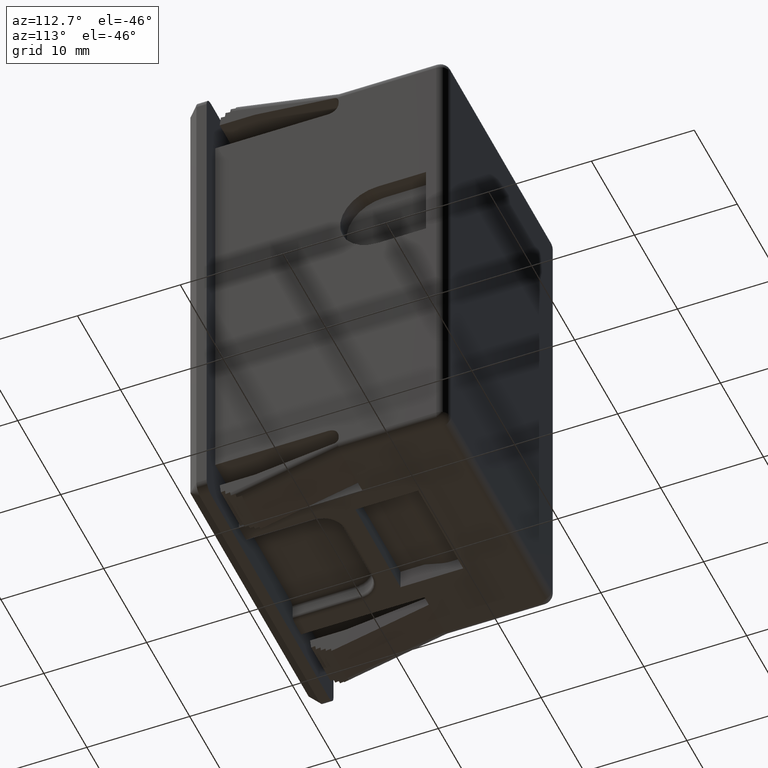
[diagram: clean part render]
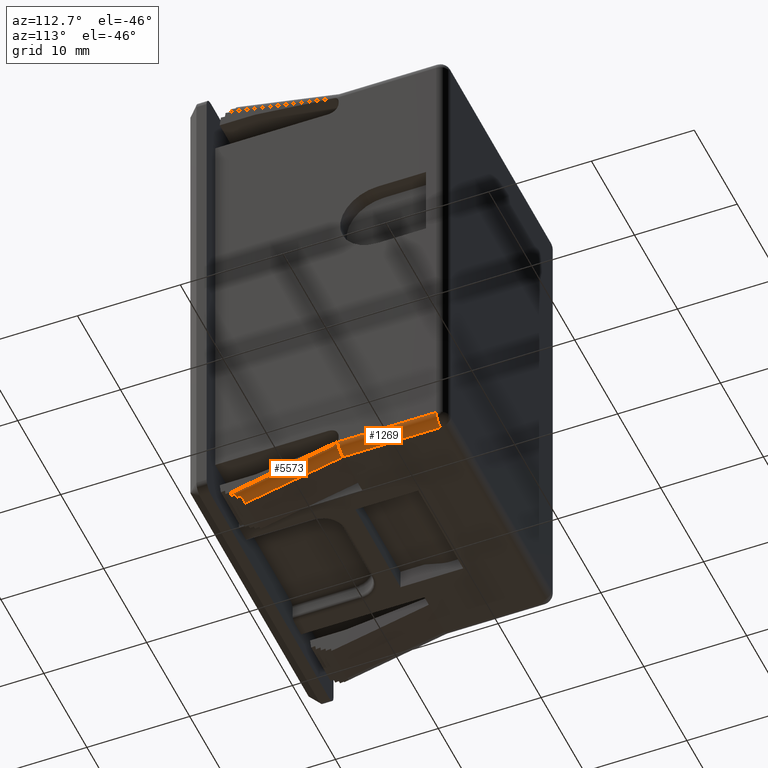
[diagram: same view with one multi-face feature highlighted, each face labeled with its STEP entity id]
A machine part, auxiliary view. The highlighted faces form ONE feature: a constant-radius fillet chain: 2 tangent blend faces with common blend radius 1 mm. The faces share edges in the B-rep.
Their STEP definitions:
[1] entity #1269 (Cylinder):
#19 = CARTESIAN_POINT ( 'NONE',  ( 12.75000000000000000, 23.49999999999229800, -22.25000000000000000 ) ) ;
#139 = VECTOR ( 'NONE', #5455, 1000.000000000000000 ) ;
#196 = DIRECTION ( 'NONE',  ( 0.0000000000000000000, -1.000000000000000000, 0.0000000000000000000 ) ) ;
#318 = EDGE_CURVE ( 'NONE', #1524, #1661, #2103, .T. ) ;
#452 = DIRECTION ( 'NONE',  ( 0.0000000000000000000, 0.0000000000000000000, -1.000000000000000000 ) ) ;
#723 = ORIENTED_EDGE ( 'NONE', *, *, #6142, .T. ) ;
#760 = ORIENTED_EDGE ( 'NONE', *, *, #3853, .F. ) ;
#768 = FACE_OUTER_BOUND ( 'NONE', #1462, .T. ) ;
#820 = CARTESIAN_POINT ( 'NONE',  ( 12.74999999999804100, 13.88656164583006000, -22.25000000000000000 ) ) ;
#886 = AXIS2_PLACEMENT_3D ( 'NONE', #3208, #196, #3709 ) ;
#1163 = CARTESIAN_POINT ( 'NONE',  ( 12.74999999999804800, 13.95301229527679800, -22.83578643762690400 ) ) ;
#1264 = CARTESIAN_POINT ( 'NONE',  ( 11.75000000000000000, 23.49999999999229800, -23.25000000000000000 ) ) ;
#1269 = ADVANCED_FACE ( 'NONE', ( #768 ), #3294, .T. ) ;
#1462 = EDGE_LOOP ( 'NONE', ( #3378, #723, #5500, #760 ) ) ;
#1524 = VERTEX_POINT ( 'NONE', #820 ) ;
#1661 = VERTEX_POINT ( 'NONE', #19 ) ;
#1812 = CARTESIAN_POINT ( 'NONE',  ( 12.74999999999804100, 22.49999999999739900, -22.25000000000000000 ) ) ;
#2103 = LINE ( 'NONE', #1812, #4792 ) ;
#2554 =( BOUNDED_CURVE ( )  B_SPLINE_CURVE ( 3, ( #5701, #3679, #1163, #4709 ),
 .UNSPECIFIED., .F., .F. ) 
 B_SPLINE_CURVE_WITH_KNOTS ( ( 4, 4 ),
 ( 4.043924620524525500E-014, 1.570796326794943200 ),
 .UNSPECIFIED. ) 
 CURVE ( )  GEOMETRIC_REPRESENTATION_ITEM ( )  RATIONAL_B_SPLINE_CURVE ( ( 1.000000000000000000, 0.8047378541243634900, 0.8047378541243634900, 1.000000000000000000 ) ) 
 REPRESENTATION_ITEM ( '' )  );
#2613 = VERTEX_POINT ( 'NONE', #1264 ) ;
#3208 = CARTESIAN_POINT ( 'NONE',  ( 11.75000000000000000, 23.49999999999229800, -22.25000000000000000 ) ) ;
#3227 = CIRCLE ( 'NONE', #886, 1.000000000000000900 ) ;
#3294 = CYLINDRICAL_SURFACE ( 'NONE', #6029, 1.000000000000000900 ) ;
#3378 = ORIENTED_EDGE ( 'NONE', *, *, #4413, .F. ) ;
#3645 = CARTESIAN_POINT ( 'NONE',  ( 11.74999999999803900, 14.00000000000912000, -23.25000000002425100 ) ) ;
#3679 = CARTESIAN_POINT ( 'NONE',  ( 12.33578643762494800, 14.00000000011480200, -23.25000000000000000 ) ) ;
#3709 = DIRECTION ( 'NONE',  ( 0.0000000000000000000, 0.0000000000000000000, -1.000000000000000000 ) ) ;
#3853 = EDGE_CURVE ( 'NONE', #5506, #1524, #2554, .T. ) ;
#4008 = LINE ( 'NONE', #4950, #139 ) ;
#4413 = EDGE_CURVE ( 'NONE', #2613, #5506, #4008, .T. ) ;
#4709 = CARTESIAN_POINT ( 'NONE',  ( 12.74999999999804100, 13.88656164583006000, -22.25000000000000000 ) ) ;
#4792 = VECTOR ( 'NONE', #5344, 1000.000000000000000 ) ;
#4950 = CARTESIAN_POINT ( 'NONE',  ( 11.74999999999803900, 14.00000000000912000, -23.25000000000000000 ) ) ;
#5015 = CARTESIAN_POINT ( 'NONE',  ( 11.74999999999803900, 1002.000000000000000, -22.25000000000000000 ) ) ;
#5344 = DIRECTION ( 'NONE',  ( 0.0000000000000000000, 1.000000000000000000, 0.0000000000000000000 ) ) ;
#5455 = DIRECTION ( 'NONE',  ( -0.0000000000000000000, -1.000000000000000000, -0.0000000000000000000 ) ) ;
#5500 = ORIENTED_EDGE ( 'NONE', *, *, #318, .F. ) ;
#5506 = VERTEX_POINT ( 'NONE', #3645 ) ;
#5701 = CARTESIAN_POINT ( 'NONE',  ( 11.74999999999803900, 14.00000000000912000, -23.25000000002425100 ) ) ;
#6029 = AXIS2_PLACEMENT_3D ( 'NONE', #5015, #6030, #452 ) ;
#6030 = DIRECTION ( 'NONE',  ( 0.0000000000000000000, -1.000000000000000000, 0.0000000000000000000 ) ) ;
#6142 = EDGE_CURVE ( 'NONE', #2613, #1661, #3227, .T. ) ;
[2] entity #5573 (Cylinder):
#40 = CARTESIAN_POINT ( 'NONE',  ( 12.68626172239505900, 3.947393090670315600, -24.89482406340954800 ) ) ;
#284 = VERTEX_POINT ( 'NONE', #5827 ) ;
#331 = CARTESIAN_POINT ( 'NONE',  ( 12.46255843268518000, 4.481631716387224400, -25.13148049394750000 ) ) ;
#487 = ORIENTED_EDGE ( 'NONE', *, *, #3964, .F. ) ;
#531 = LINE ( 'NONE', #1991, #5753 ) ;
#587 = DIRECTION ( 'NONE',  ( -9.058160311928583100E-015, -0.9745904561764292500, -0.2239942917349005700 ) ) ;
#631 = FACE_OUTER_BOUND ( 'NONE', #1925, .T. ) ;
#674 = CARTESIAN_POINT ( 'NONE',  ( 12.51019882645254100, 3.983954048133820300, -25.19258788993839800 ) ) ;
#717 = CARTESIAN_POINT ( 'NONE',  ( 12.70244674060206000, 3.500747350876305400, -24.94966549960500400 ) ) ;
#820 = CARTESIAN_POINT ( 'NONE',  ( 12.74999999999804100, 13.88656164583006000, -22.25000000000000000 ) ) ;
#1089 = DIRECTION ( 'NONE',  ( 0.0000000000000000000, 0.2239942917349185800, -0.9745904561764250400 ) ) ;
#1110 = CARTESIAN_POINT ( 'NONE',  ( 12.68626172239505900, 3.947393090670315600, -24.89482406340954800 ) ) ;
#1163 = CARTESIAN_POINT ( 'NONE',  ( 12.74999999999804800, 13.95301229527679800, -22.83578643762690400 ) ) ;
#1175 = ORIENTED_EDGE ( 'NONE', *, *, #1855, .F. ) ;
#1343 = CARTESIAN_POINT ( 'NONE',  ( 12.74999999999793900, 3.463412272137240200, -24.64559698826435200 ) ) ;
#1350 = CARTESIAN_POINT ( 'NONE',  ( 12.49493203255042100, 4.155177397668430700, -25.17156421600173400 ) ) ;
#1524 = VERTEX_POINT ( 'NONE', #820 ) ;
#1529 = ORIENTED_EDGE ( 'NONE', *, *, #3853, .T. ) ;
#1609 = CARTESIAN_POINT ( 'NONE',  ( 12.02155382160926500, 4.518192673851025600, -25.42924432047670200 ) ) ;
#1726 = CARTESIAN_POINT ( 'NONE',  ( 11.74999999999796100, 4.518192673850879100, -25.42924432047670200 ) ) ;
#1855 = EDGE_CURVE ( 'NONE', #5506, #2571, #3682, .T. ) ;
#1925 = EDGE_LOOP ( 'NONE', ( #4576, #1175, #1529, #4199, #487, #4960, #2146, #3747 ) ) ;
#1991 = CARTESIAN_POINT ( 'NONE',  ( 12.74999999999804100, 13.77600570827410000, -22.27540954384790000 ) ) ;
#2006 =( BOUNDED_CURVE ( )  B_SPLINE_CURVE ( 3, ( #674, #3194, #5249, #2197 ),
 .UNSPECIFIED., .F., .F. ) 
 B_SPLINE_CURVE_WITH_KNOTS ( ( 4, 4 ),
 ( 0.8636190928195856000, 1.211833593293793600 ),
 .UNSPECIFIED. ) 
 CURVE ( )  GEOMETRIC_REPRESENTATION_ITEM ( )  RATIONAL_B_SPLINE_CURVE ( ( 1.000000000000000000, 0.9899210543121923500, 0.9899210543121923500, 1.000000000000000000 ) ) 
 REPRESENTATION_ITEM ( '' )  );
#2018 = VERTEX_POINT ( 'NONE', #40 ) ;
#2146 = ORIENTED_EDGE ( 'NONE', *, *, #5010, .F. ) ;
#2197 = CARTESIAN_POINT ( 'NONE',  ( 12.68626172239505900, 3.947393090670315600, -24.89482406340954800 ) ) ;
#2326 = CARTESIAN_POINT ( 'NONE',  ( 12.70244674060206000, 3.500747350876305400, -24.94966549960500400 ) ) ;
#2346 = VECTOR ( 'NONE', #6269, 1000.000000000000100 ) ;
#2488 = DIRECTION ( 'NONE',  ( 9.058160311928581500E-015, 0.9745904561764291400, 0.2239942917349005400 ) ) ;
#2554 =( BOUNDED_CURVE ( )  B_SPLINE_CURVE ( 3, ( #5701, #3679, #1163, #4709 ),
 .UNSPECIFIED., .F., .F. ) 
 B_SPLINE_CURVE_WITH_KNOTS ( ( 4, 4 ),
 ( 4.043924620524525500E-014, 1.570796326794943200 ),
 .UNSPECIFIED. ) 
 CURVE ( )  GEOMETRIC_REPRESENTATION_ITEM ( )  RATIONAL_B_SPLINE_CURVE ( ( 1.000000000000000000, 0.8047378541243634900, 0.8047378541243634900, 1.000000000000000000 ) ) 
 REPRESENTATION_ITEM ( '' )  );
#2571 = VERTEX_POINT ( 'NONE', #5146 ) ;
#2605 = CARTESIAN_POINT ( 'NONE',  ( 12.46255843268518000, 4.481631716387224400, -25.13148049394750000 ) ) ;
#2677 =( BOUNDED_CURVE ( )  B_SPLINE_CURVE ( 3, ( #1110, #6179, #3742, #717 ),
 .UNSPECIFIED., .F., .F. ) 
 B_SPLINE_CURVE_WITH_KNOTS ( ( 4, 4 ),
 ( 4.353426246883509000, 4.402760175678968900 ),
 .UNSPECIFIED. ) 
 CURVE ( )  GEOMETRIC_REPRESENTATION_ITEM ( )  RATIONAL_B_SPLINE_CURVE ( ( 1.000000000000000000, 0.9997971905728838500, 0.9997971905728838500, 1.000000000000000000 ) ) 
 REPRESENTATION_ITEM ( '' )  );
#2751 = VERTEX_POINT ( 'NONE', #4406 ) ;
#2761 = VERTEX_POINT ( 'NONE', #5930 ) ;
#3175 =( BOUNDED_CURVE ( )  B_SPLINE_CURVE ( 3, ( #2326, #5366, #4369, #1343 ),
 .UNSPECIFIED., .F., .F. ) 
 B_SPLINE_CURVE_WITH_KNOTS ( ( 4, 4 ),
 ( 1.261167522089237500, 1.570796326794989800 ),
 .UNSPECIFIED. ) 
 CURVE ( )  GEOMETRIC_REPRESENTATION_ITEM ( )  RATIONAL_B_SPLINE_CURVE ( ( 1.000000000000000000, 0.9920267775603357500, 0.9920267775603357500, 1.000000000000000000 ) ) 
 REPRESENTATION_ITEM ( '' )  );
#3194 = CARTESIAN_POINT ( 'NONE',  ( 12.58599288767788100, 3.973087460513148500, -25.10408701535084200 ) ) ;
#3347 = CARTESIAN_POINT ( 'NONE',  ( 12.47904532542717200, 4.321138648868213700, -25.15118664926900000 ) ) ;
#3645 = CARTESIAN_POINT ( 'NONE',  ( 11.74999999999803900, 14.00000000000912000, -23.25000000002425100 ) ) ;
#3649 = EDGE_CURVE ( 'NONE', #6266, #1524, #531, .T. ) ;
#3679 = CARTESIAN_POINT ( 'NONE',  ( 12.33578643762494800, 14.00000000011480200, -23.25000000000000000 ) ) ;
#3682 = LINE ( 'NONE', #1726, #2346 ) ;
#3742 = CARTESIAN_POINT ( 'NONE',  ( 12.69743546559994000, 3.650889856704373000, -24.93123023890507300 ) ) ;
#3747 = ORIENTED_EDGE ( 'NONE', *, *, #5159, .F. ) ;
#3853 = EDGE_CURVE ( 'NONE', #5506, #1524, #2554, .T. ) ;
#3872 =( BOUNDED_CURVE ( )  B_SPLINE_CURVE ( 3, ( #5157, #1609, #5643, #2605 ),
 .UNSPECIFIED., .F., .F. ) 
 B_SPLINE_CURVE_WITH_KNOTS ( ( 4, 4 ),
 ( 4.396674150703361400E-014, 0.7931379924902568500 ),
 .UNSPECIFIED. ) 
 CURVE ( )  GEOMETRIC_REPRESENTATION_ITEM ( )  RATIONAL_B_SPLINE_CURVE ( ( 1.000000000000000000, 0.9482611106098051100, 0.9482611106098051100, 1.000000000000000000 ) ) 
 REPRESENTATION_ITEM ( '' )  );
#3964 = EDGE_CURVE ( 'NONE', #2761, #6266, #3175, .T. ) ;
#4199 = ORIENTED_EDGE ( 'NONE', *, *, #3649, .F. ) ;
#4369 = CARTESIAN_POINT ( 'NONE',  ( 12.74999999999793800, 3.476109175718450100, -24.74900452618691200 ) ) ;
#4406 = CARTESIAN_POINT ( 'NONE',  ( 12.51019882645254100, 3.983954048133820300, -25.19258788993839800 ) ) ;
#4514 = CYLINDRICAL_SURFACE ( 'NONE', #5009, 1.000000000000002400 ) ;
#4576 = ORIENTED_EDGE ( 'NONE', *, *, #5469, .F. ) ;
#4709 = CARTESIAN_POINT ( 'NONE',  ( 12.74999999999804100, 13.88656164583006000, -22.25000000000000000 ) ) ;
#4896 = CARTESIAN_POINT ( 'NONE',  ( 12.51019882645254100, 3.983954048133820300, -25.19258788993839800 ) ) ;
#4960 = ORIENTED_EDGE ( 'NONE', *, *, #5607, .F. ) ;
#5009 = AXIS2_PLACEMENT_3D ( 'NONE', #5143, #587, #1089 ) ;
#5010 = EDGE_CURVE ( 'NONE', #2751, #2018, #2006, .T. ) ;
#5059 =( BOUNDED_CURVE ( )  B_SPLINE_CURVE ( 3, ( #331, #3347, #1350, #4896 ),
 .UNSPECIFIED., .F., .F. ) 
 B_SPLINE_CURVE_WITH_KNOTS ( ( 4, 4 ),
 ( 3.934730646080046000, 4.005211746409295300 ),
 .UNSPECIFIED. ) 
 CURVE ( )  GEOMETRIC_REPRESENTATION_ITEM ( )  RATIONAL_B_SPLINE_CURVE ( ( 1.000000000000000000, 0.9995860773814415600, 0.9995860773814415600, 1.000000000000000000 ) ) 
 REPRESENTATION_ITEM ( '' )  );
#5143 = CARTESIAN_POINT ( 'NONE',  ( 11.75000000000688000, 963.9479949420549500, 196.1066815241910000 ) ) ;
#5146 = CARTESIAN_POINT ( 'NONE',  ( 11.74999999999791800, 4.518192673850819600, -25.42924432047670200 ) ) ;
#5157 = CARTESIAN_POINT ( 'NONE',  ( 11.74999999999791800, 4.518192673850819600, -25.42924432047670200 ) ) ;
#5159 = EDGE_CURVE ( 'NONE', #284, #2751, #5059, .T. ) ;
#5249 = CARTESIAN_POINT ( 'NONE',  ( 12.64527805160598300, 3.960776392102101500, -25.00382183924346800 ) ) ;
#5366 = CARTESIAN_POINT ( 'NONE',  ( 12.73402151350566700, 3.488654226444770900, -24.85117532715678800 ) ) ;
#5469 = EDGE_CURVE ( 'NONE', #2571, #284, #3872, .T. ) ;
#5506 = VERTEX_POINT ( 'NONE', #3645 ) ;
#5573 = ADVANCED_FACE ( 'NONE', ( #631 ), #4514, .T. ) ;
#5607 = EDGE_CURVE ( 'NONE', #2018, #2761, #2677, .T. ) ;
#5643 = CARTESIAN_POINT ( 'NONE',  ( 12.27203280351086600, 4.505340743422931600, -25.32457419562128800 ) ) ;
#5701 = CARTESIAN_POINT ( 'NONE',  ( 11.74999999999803900, 14.00000000000912000, -23.25000000002425100 ) ) ;
#5753 = VECTOR ( 'NONE', #2488, 1000.000000000000100 ) ;
#5827 = CARTESIAN_POINT ( 'NONE',  ( 12.46255843268518000, 4.481631716387224400, -25.13148049394750000 ) ) ;
#5930 = CARTESIAN_POINT ( 'NONE',  ( 12.70244674060206000, 3.500747350876305400, -24.94966549960500400 ) ) ;
#6178 = CARTESIAN_POINT ( 'NONE',  ( 12.74999999999793900, 3.463412272137240200, -24.64559698826435200 ) ) ;
#6179 = CARTESIAN_POINT ( 'NONE',  ( 12.69203936515082800, 3.799801970749374600, -24.91294605196781100 ) ) ;
#6266 = VERTEX_POINT ( 'NONE', #6178 ) ;
#6269 = DIRECTION ( 'NONE',  ( -9.058160311928581500E-015, -0.9745904561764291400, -0.2239942917349005400 ) ) ;